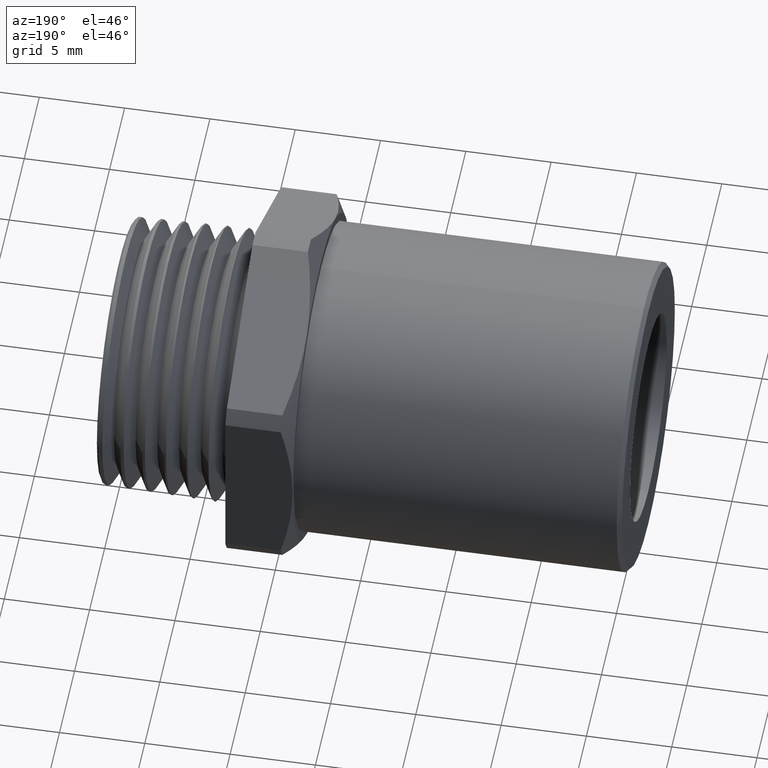
[diagram: clean part render]
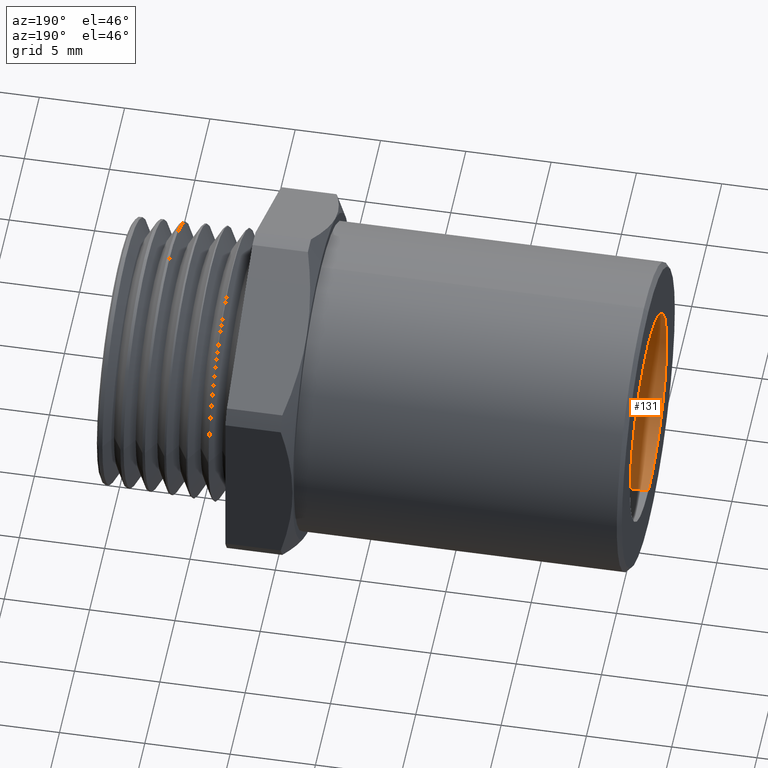
[diagram: same view with one face highlighted and labeled with its STEP entity id]
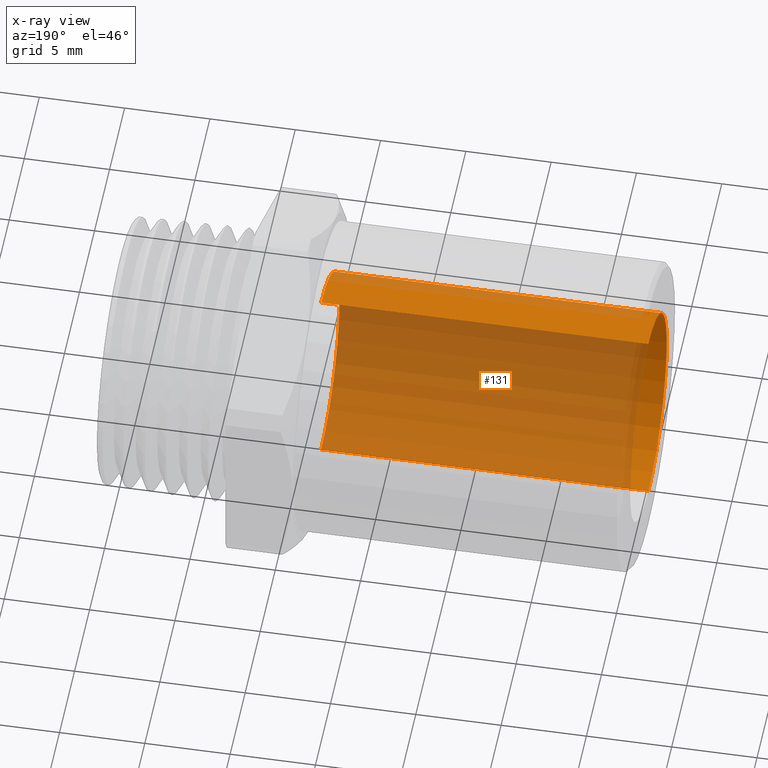
[diagram: x-ray of the same camera — body ghosted, the highlighted face saturated]
A machine part, auxiliary view. The second image highlights one B-rep face of the part: STEP entity #131.
The next image is the same camera in x-ray: the body ghosted, the highlighted face saturated — about 80% of this face is hidden behind the body in this view.
In plain terms, the highlighted cylindrical surface (partial cylindrical patch) has radius 6.096 mm, axis along (-1, 0, 0).
Its self-contained STEP definition (entity closure, byte-faithful):
#125 = ORIENTED_EDGE ( 'NONE', *, *, #129, .F. ) ;
#126 = EDGE_LOOP ( 'NONE', ( #125, #421, #419, #416 ) ) ;
#129 = EDGE_CURVE ( 'NONE', #431, #414, #935, .T. ) ;
#131 = ADVANCED_FACE ( 'NONE', ( #986 ), #985, .F. ) ;
#409 = VERTEX_POINT ( 'NONE', #1490 ) ;
#412 = EDGE_CURVE ( 'NONE', #418, #409, #1489, .T. ) ;
#413 = EDGE_CURVE ( 'NONE', #431, #418, #1484, .T. ) ;
#414 = VERTEX_POINT ( 'NONE', #1480 ) ;
#416 = ORIENTED_EDGE ( 'NONE', *, *, #417, .F. ) ;
#417 = EDGE_CURVE ( 'NONE', #414, #409, #1479, .T. ) ;
#418 = VERTEX_POINT ( 'NONE', #1475 ) ;
#419 = ORIENTED_EDGE ( 'NONE', *, *, #412, .T. ) ;
#421 = ORIENTED_EDGE ( 'NONE', *, *, #413, .T. ) ;
#431 = VERTEX_POINT ( 'NONE', #1516 ) ;
#935 = CIRCLE ( 'NONE', #994, 0.2400000000000000500 ) ;
#981 = DIRECTION ( 'NONE',  ( 0.0000000000000000000, 0.0000000000000000000, 1.000000000000000000 ) ) ;
#982 = DIRECTION ( 'NONE',  ( -1.000000000000000000, 0.0000000000000000000, 0.0000000000000000000 ) ) ;
#983 = CARTESIAN_POINT ( 'NONE',  ( -0.5911096051061856000, 0.0000000000000000000, 0.0000000000000000000 ) ) ;
#984 = AXIS2_PLACEMENT_3D ( 'NONE', #983, #982, #981 ) ;
#985 = CYLINDRICAL_SURFACE ( 'NONE', #984, 0.2400000000000000500 ) ;
#986 = FACE_OUTER_BOUND ( 'NONE', #126, .T. ) ;
#991 = DIRECTION ( 'NONE',  ( 0.0000000000000000000, 0.0000000000000000000, 1.000000000000000000 ) ) ;
#992 = DIRECTION ( 'NONE',  ( -1.000000000000000000, 0.0000000000000000000, 0.0000000000000000000 ) ) ;
#993 = CARTESIAN_POINT ( 'NONE',  ( -0.4649999999999998000, 0.0000000000000000000, 0.0000000000000000000 ) ) ;
#994 = AXIS2_PLACEMENT_3D ( 'NONE', #993, #992, #991 ) ;
#1475 = CARTESIAN_POINT ( 'NONE',  ( -1.219999999999999800, 2.939152317953648000E-017, -0.2400000000000000500 ) ) ;
#1476 = DIRECTION ( 'NONE',  ( -1.000000000000000000, 0.0000000000000000000, 0.0000000000000000000 ) ) ;
#1477 = VECTOR ( 'NONE', #1476, 39.37007874015748100 ) ;
#1478 = CARTESIAN_POINT ( 'NONE',  ( -0.5911096051061856000, 0.0000000000000000000, 0.2400000000000000500 ) ) ;
#1479 = LINE ( 'NONE', #1478, #1477 ) ;
#1480 = CARTESIAN_POINT ( 'NONE',  ( -0.4649999999999998000, 0.0000000000000000000, 0.2400000000000000500 ) ) ;
#1481 = DIRECTION ( 'NONE',  ( -1.000000000000000000, 0.0000000000000000000, 0.0000000000000000000 ) ) ;
#1482 = VECTOR ( 'NONE', #1481, 39.37007874015748100 ) ;
#1483 = CARTESIAN_POINT ( 'NONE',  ( -0.5911096051061856000, 2.939152317953648000E-017, -0.2400000000000000500 ) ) ;
#1484 = LINE ( 'NONE', #1483, #1482 ) ;
#1485 = DIRECTION ( 'NONE',  ( 0.0000000000000000000, 0.0000000000000000000, 1.000000000000000000 ) ) ;
#1486 = DIRECTION ( 'NONE',  ( -1.000000000000000000, 0.0000000000000000000, 0.0000000000000000000 ) ) ;
#1487 = CARTESIAN_POINT ( 'NONE',  ( -1.219999999999999800, 0.0000000000000000000, 0.0000000000000000000 ) ) ;
#1488 = AXIS2_PLACEMENT_3D ( 'NONE', #1487, #1486, #1485 ) ;
#1489 = CIRCLE ( 'NONE', #1488, 0.2400000000000000500 ) ;
#1490 = CARTESIAN_POINT ( 'NONE',  ( -1.219999999999999800, 0.0000000000000000000, 0.2400000000000000500 ) ) ;
#1516 = CARTESIAN_POINT ( 'NONE',  ( -0.4649999999999998000, 2.939152317953648000E-017, -0.2400000000000000500 ) ) ;